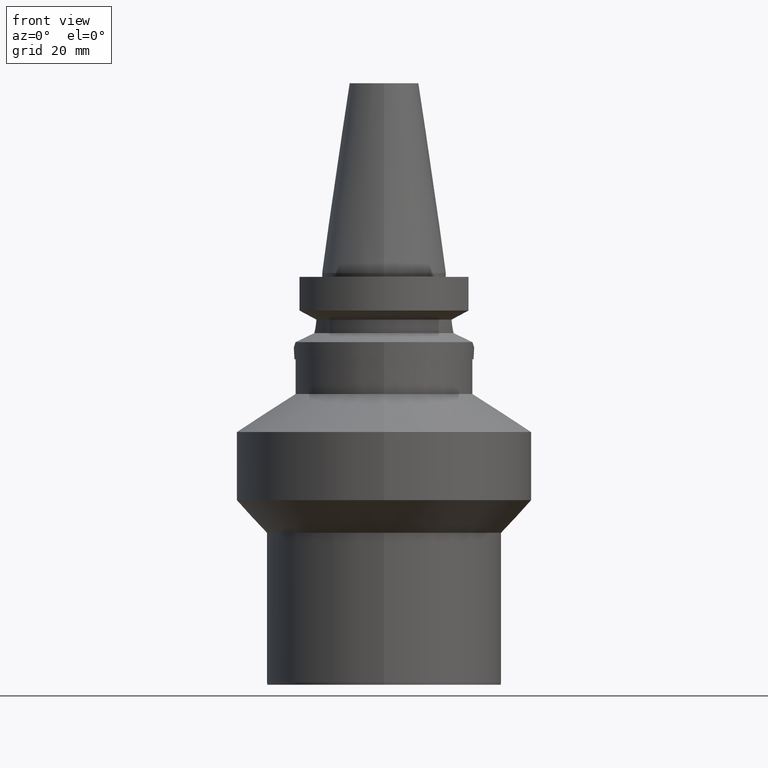
[diagram: clean part render]
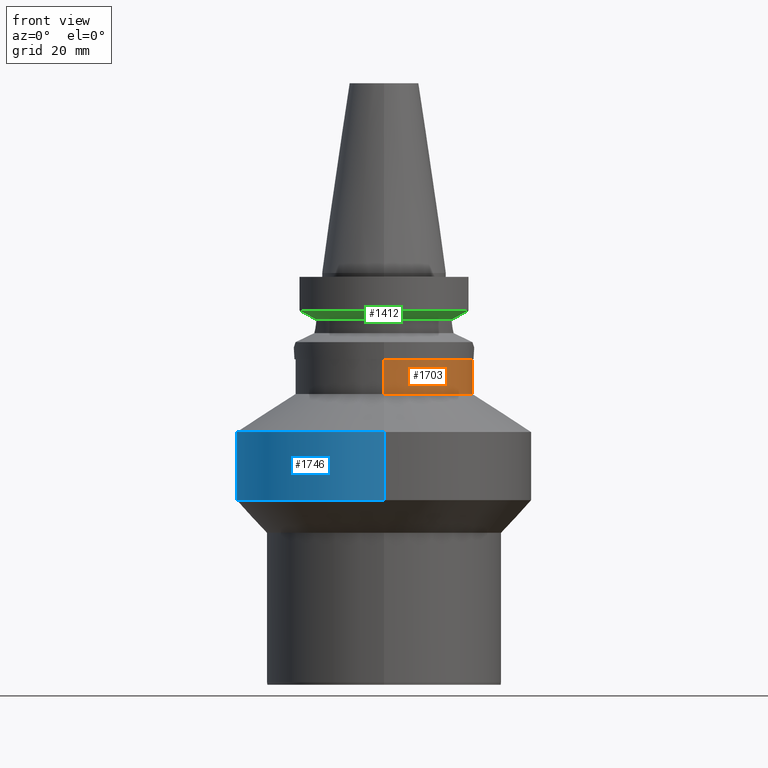
[diagram: same view with three faces highlighted in distinct colors, each labeled with its STEP entity id]
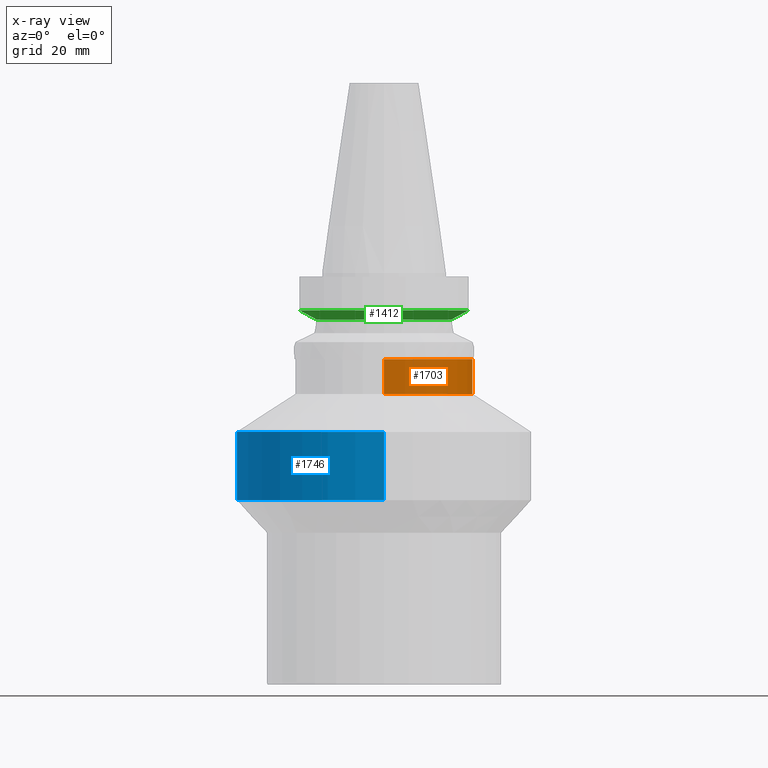
[diagram: x-ray of the same camera — body ghosted, the three highlighted faces saturated]
A machine part, front view with three faces highlighted in distinct colors.
The next image is the same camera in x-ray (body ghosted, the three faces saturated) — at least one of them is partly hidden behind the body in this view.
Their STEP definitions:

[orange] entity #1703 — the highlighted cylindrical surface (partial cylindrical patch) has radius 22.7 mm, axis along (0, 0, -1).
#639=CARTESIAN_POINT('',(0.E0,0.E0,-2.2E1));
#640=DIRECTION('',(0.E0,0.E0,-1.E0));
#641=DIRECTION('',(0.E0,1.E0,0.E0));
#642=AXIS2_PLACEMENT_3D('',#639,#640,#641);
#647=DIRECTION('',(0.E0,-4.096788099660E-14,-1.E0));
#648=VECTOR('',#647,8.845387811679E0);
#649=CARTESIAN_POINT('',(0.E0,-2.27E1,-2.2E1));
#650=LINE('',#649,#648);
#654=DIRECTION('',(0.E0,4.096788099660E-14,-1.E0));
#655=VECTOR('',#654,8.845387811679E0);
#656=CARTESIAN_POINT('',(0.E0,2.27E1,-2.2E1));
#657=LINE('',#656,#655);
#676=CARTESIAN_POINT('',(0.E0,0.E0,-3.084538781168E1));
#677=DIRECTION('',(0.E0,0.E0,1.E0));
#678=DIRECTION('',(0.E0,-1.E0,0.E0));
#679=AXIS2_PLACEMENT_3D('',#676,#677,#678);
#1159=CARTESIAN_POINT('',(0.E0,2.27E1,-3.084538781168E1));
#1160=VERTEX_POINT('',#1159);
#1161=CARTESIAN_POINT('',(0.E0,-2.27E1,-3.084538781168E1));
#1162=VERTEX_POINT('',#1161);
#1163=CARTESIAN_POINT('',(0.E0,2.27E1,-2.2E1));
#1164=VERTEX_POINT('',#1163);
#1165=CARTESIAN_POINT('',(0.E0,-2.27E1,-2.2E1));
#1166=VERTEX_POINT('',#1165);
#1691=CARTESIAN_POINT('',(0.E0,0.E0,5.607E1));
#1692=DIRECTION('',(0.E0,0.E0,-1.E0));
#1693=DIRECTION('',(0.E0,-1.E0,0.E0));
#1694=AXIS2_PLACEMENT_3D('',#1691,#1692,#1693);
#1695=CYLINDRICAL_SURFACE('',#1694,2.27E1);
#1696=ORIENTED_EDGE('',*,*,#1681,.T.);
#1698=ORIENTED_EDGE('',*,*,#1697,.F.);
#1699=ORIENTED_EDGE('',*,*,#1684,.F.);
#1700=ORIENTED_EDGE('',*,*,#1671,.F.);
#1701=EDGE_LOOP('',(#1696,#1698,#1699,#1700));
#1702=FACE_OUTER_BOUND('',#1701,.F.);
#643=CIRCLE('',#642,2.27E1);
#680=CIRCLE('',#679,2.27E1);
#1671=EDGE_CURVE('',#1164,#1166,#643,.T.);
#1681=EDGE_CURVE('',#1164,#1160,#657,.T.);
#1684=EDGE_CURVE('',#1166,#1162,#650,.T.);
#1697=EDGE_CURVE('',#1162,#1160,#680,.T.);
#1703=ADVANCED_FACE('',(#1702),#1695,.T.);

[blue] entity #1746 — the highlighted cylindrical surface (partial cylindrical patch) has radius 37.5 mm, axis along (0, 0, -1).
#699=CARTESIAN_POINT('',(0.E0,0.E0,-4.0545E1));
#700=DIRECTION('',(0.E0,0.E0,-1.E0));
#701=DIRECTION('',(0.E0,-1.E0,0.E0));
#702=AXIS2_PLACEMENT_3D('',#699,#700,#701);
#707=DIRECTION('',(0.E0,-3.149786450980E-14,-1.E0));
#708=VECTOR('',#707,1.737E1);
#709=CARTESIAN_POINT('',(0.E0,-3.75E1,-4.0545E1));
#710=LINE('',#709,#708);
#714=DIRECTION('',(0.E0,3.190692768526E-14,-1.E0));
#715=VECTOR('',#714,1.737E1);
#716=CARTESIAN_POINT('',(0.E0,3.75E1,-4.0545E1));
#717=LINE('',#716,#715);
#744=CARTESIAN_POINT('',(0.E0,0.E0,-5.7915E1));
#745=DIRECTION('',(0.E0,0.E0,1.E0));
#746=DIRECTION('',(0.E0,1.E0,0.E0));
#747=AXIS2_PLACEMENT_3D('',#744,#745,#746);
#1151=CARTESIAN_POINT('',(0.E0,3.75E1,-5.7915E1));
#1152=VERTEX_POINT('',#1151);
#1153=CARTESIAN_POINT('',(0.E0,-3.75E1,-5.7915E1));
#1154=VERTEX_POINT('',#1153);
#1155=CARTESIAN_POINT('',(0.E0,3.75E1,-4.0545E1));
#1156=VERTEX_POINT('',#1155);
#1157=CARTESIAN_POINT('',(0.E0,-3.75E1,-4.0545E1));
#1158=VERTEX_POINT('',#1157);
#1732=CARTESIAN_POINT('',(0.E0,0.E0,5.607E1));
#1733=DIRECTION('',(0.E0,0.E0,-1.E0));
#1734=DIRECTION('',(0.E0,-1.E0,0.E0));
#1735=AXIS2_PLACEMENT_3D('',#1732,#1733,#1734);
#1736=CYLINDRICAL_SURFACE('',#1735,3.75E1);
#1738=ORIENTED_EDGE('',*,*,#1737,.F.);
#1739=ORIENTED_EDGE('',*,*,#1727,.F.);
#1741=ORIENTED_EDGE('',*,*,#1740,.T.);
#1743=ORIENTED_EDGE('',*,*,#1742,.F.);
#1744=EDGE_LOOP('',(#1738,#1739,#1741,#1743));
#1745=FACE_OUTER_BOUND('',#1744,.F.);
#703=CIRCLE('',#702,3.75E1);
#748=CIRCLE('',#747,3.75E1);
#1727=EDGE_CURVE('',#1158,#1156,#703,.T.);
#1737=EDGE_CURVE('',#1156,#1152,#717,.T.);
#1740=EDGE_CURVE('',#1158,#1154,#710,.T.);
#1742=EDGE_CURVE('',#1152,#1154,#748,.T.);
#1746=ADVANCED_FACE('',(#1745),#1736,.T.);

[green] entity #1412 — the highlighted conical surface has half-angle 60 deg.
#200=CARTESIAN_POINT('',(-2.154524325238E1,-8.049999577364E0,
-9.567211146642E0));
#201=CARTESIAN_POINT('',(-2.125934147001E1,-8.049999577364E0,
-9.721836180457E0));
#202=CARTESIAN_POINT('',(-2.068725319589E1,-8.049999439640E0,
-1.003056889167E1));
#203=CARTESIAN_POINT('',(-1.982793088318E1,-8.050002595214E0,
-1.049144078743E1));
#204=CARTESIAN_POINT('',(-1.925438162574E1,-8.049994318073E0,
-1.079747462466E1));
#205=CARTESIAN_POINT('',(-1.896738966518E1,-8.049994318073E0,
-1.095000099924E1));
#217=CARTESIAN_POINT('',(0.E0,0.E0,-9.567208369711E0));
#218=DIRECTION('',(0.E0,0.E0,1.E0));
#219=DIRECTION('',(-9.367496997597E-1,-3.500000000001E-1,0.E0));
#220=AXIS2_PLACEMENT_3D('',#217,#218,#219);
#225=CARTESIAN_POINT('',(0.E0,0.E0,-9.567208369711E0));
#226=DIRECTION('',(0.E0,0.E0,1.E0));
#227=DIRECTION('',(0.E0,-1.E0,0.E0));
#228=AXIS2_PLACEMENT_3D('',#225,#226,#227);
#233=CARTESIAN_POINT('',(1.896736186694E1,-8.050001277873E0,-1.094999977540E1));
#234=CARTESIAN_POINT('',(1.877435788408E1,-8.050001277873E0,-1.105257472423E1));
#235=CARTESIAN_POINT('',(1.838865476370E1,-8.046082019801E0,-1.125795281918E1));
#236=CARTESIAN_POINT('',(1.781119204547E1,-8.028323726413E0,-1.156685916138E1));
#237=CARTESIAN_POINT('',(1.742708427631E1,-8.008477147751E0,-1.177326090514E1));
#238=CARTESIAN_POINT('',(1.723531135315E1,-7.996501749113E0,-1.187660739353E1));
#243=CARTESIAN_POINT('',(0.E0,0.E0,-1.187660944647E1));
#244=DIRECTION('',(0.E0,0.E0,-1.E0));
#245=DIRECTION('',(9.071218755694E-1,-4.208680349747E-1,0.E0));
#246=AXIS2_PLACEMENT_3D('',#243,#244,#245);
#251=CARTESIAN_POINT('',(0.E0,0.E0,-1.187660944647E1));
#252=DIRECTION('',(0.E0,0.E0,-1.E0));
#253=DIRECTION('',(0.E0,-1.E0,0.E0));
#254=AXIS2_PLACEMENT_3D('',#251,#252,#253);
#259=CARTESIAN_POINT('',(-1.723531622871E1,-7.996491146968E0,
-1.187660607766E1));
#260=CARTESIAN_POINT('',(-1.742711751359E1,-8.008468272467E0,
-1.177324424037E1));
#261=CARTESIAN_POINT('',(-1.781125610054E1,-8.028331856145E0,
-1.156681091071E1));
#262=CARTESIAN_POINT('',(-1.838870194718E1,-8.046085192099E0,
-1.125790844380E1));
#263=CARTESIAN_POINT('',(-1.877442071798E1,-8.049994318073E0,
-1.105255737005E1));
#264=CARTESIAN_POINT('',(-1.896738966518E1,-8.049994318073E0,
-1.095000099924E1));
#283=CARTESIAN_POINT('',(1.896736186694E1,-8.050001277873E0,-1.094999977540E1));
#284=CARTESIAN_POINT('',(1.925439178280E1,-8.050001277873E0,-1.079745329166E1));
#285=CARTESIAN_POINT('',(1.982795252656E1,-8.049999682934E0,-1.049150139893E1));
#286=CARTESIAN_POINT('',(2.068728862309E1,-8.049999192921E0,-1.003062464902E1));
#287=CARTESIAN_POINT('',(2.125933007629E1,-8.050002094562E0,-9.721825273558E0));
#288=CARTESIAN_POINT('',(2.154524231188E1,-8.050002094562E0,-9.567194606553E0));
#492=CARTESIAN_POINT('',(1.723531135315E1,-7.996501749113E0,-1.187660739353E1));
#1179=VERTEX_POINT('',#492);
#1180=VERTEX_POINT('',#233);
#1207=CARTESIAN_POINT('',(-1.896738966518E1,-8.049994318073E0,
-1.095000099924E1));
#1208=VERTEX_POINT('',#1207);
#1209=VERTEX_POINT('',#259);
#1210=CARTESIAN_POINT('',(0.E0,-1.9E1,-1.187660944647E1));
#1211=VERTEX_POINT('',#1210);
#1214=VERTEX_POINT('',#200);
#1215=CARTESIAN_POINT('',(0.E0,-2.3E1,-9.567208369711E0));
#1216=CARTESIAN_POINT('',(2.154524309447E1,-8.050000000001E0,
-9.567208369711E0));
#1217=VERTEX_POINT('',#1215);
#1218=VERTEX_POINT('',#1216);
#1390=CARTESIAN_POINT('',(0.E0,0.E0,-1.072190890809E1));
#1391=DIRECTION('',(0.E0,0.E0,1.E0));
#1392=DIRECTION('',(0.E0,1.E0,0.E0));
#1393=AXIS2_PLACEMENT_3D('',#1390,#1391,#1392);
#1394=CONICAL_SURFACE('',#1393,2.1E1,6.E1);
#1395=ORIENTED_EDGE('',*,*,#1379,.F.);
#1397=ORIENTED_EDGE('',*,*,#1396,.T.);
#1399=ORIENTED_EDGE('',*,*,#1398,.T.);
#1401=ORIENTED_EDGE('',*,*,#1400,.F.);
#1403=ORIENTED_EDGE('',*,*,#1402,.T.);
#1405=ORIENTED_EDGE('',*,*,#1404,.T.);
#1407=ORIENTED_EDGE('',*,*,#1406,.T.);
#1409=ORIENTED_EDGE('',*,*,#1408,.T.);
#1410=EDGE_LOOP('',(#1395,#1397,#1399,#1401,#1403,#1405,#1407,#1409));
#1411=FACE_OUTER_BOUND('',#1410,.F.);
#206=B_SPLINE_CURVE_WITH_KNOTS('',3,(#200,#201,#202,#203,#204,#205),
.UNSPECIFIED.,.F.,.F.,(4,1,1,4),(0.E0,3.333333333333E-1,6.666666666667E-1,1.E0),
.UNSPECIFIED.);
#221=CIRCLE('',#220,2.3E1);
#229=CIRCLE('',#228,2.3E1);
#239=B_SPLINE_CURVE_WITH_KNOTS('',3,(#233,#234,#235,#236,#237,#238),
.UNSPECIFIED.,.F.,.F.,(4,1,1,4),(0.E0,3.333333333333E-1,6.666666666667E-1,1.E0),
.UNSPECIFIED.);
#247=CIRCLE('',#246,1.9E1);
#255=CIRCLE('',#254,1.9E1);
#265=B_SPLINE_CURVE_WITH_KNOTS('',3,(#259,#260,#261,#262,#263,#264),
.UNSPECIFIED.,.F.,.F.,(4,1,1,4),(0.E0,3.333333333333E-1,6.666666666667E-1,1.E0),
.UNSPECIFIED.);
#289=B_SPLINE_CURVE_WITH_KNOTS('',3,(#283,#284,#285,#286,#287,#288),
.UNSPECIFIED.,.F.,.F.,(4,1,1,4),(0.E0,3.333333333333E-1,6.666666666667E-1,1.E0),
.UNSPECIFIED.);
#1379=EDGE_CURVE('',#1214,#1208,#206,.T.);
#1396=EDGE_CURVE('',#1214,#1217,#221,.T.);
#1398=EDGE_CURVE('',#1217,#1218,#229,.T.);
#1400=EDGE_CURVE('',#1180,#1218,#289,.T.);
#1402=EDGE_CURVE('',#1180,#1179,#239,.T.);
#1404=EDGE_CURVE('',#1179,#1211,#247,.T.);
#1406=EDGE_CURVE('',#1211,#1209,#255,.T.);
#1408=EDGE_CURVE('',#1209,#1208,#265,.T.);
#1412=ADVANCED_FACE('',(#1411),#1394,.T.);